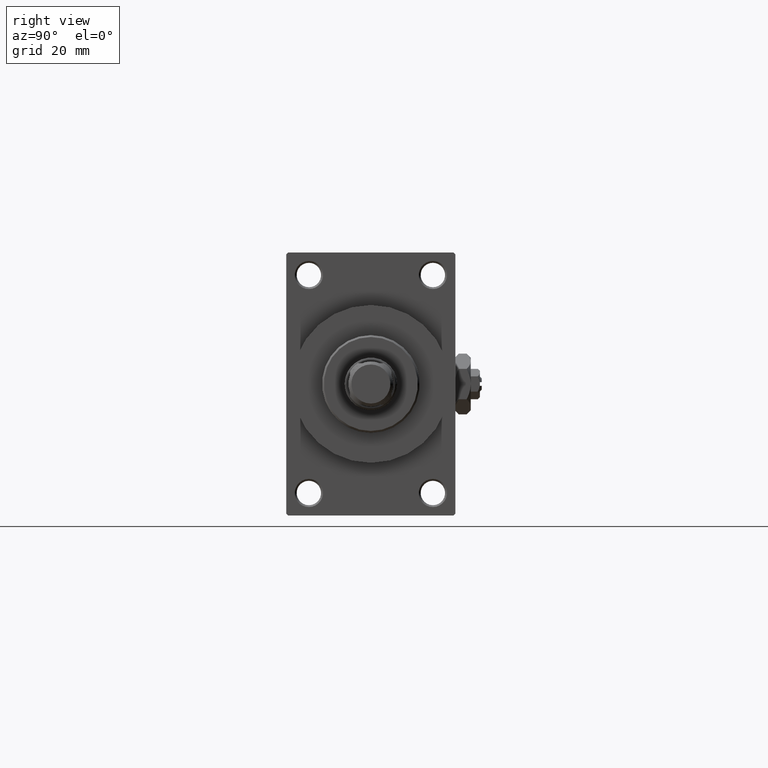
[diagram: clean part render]
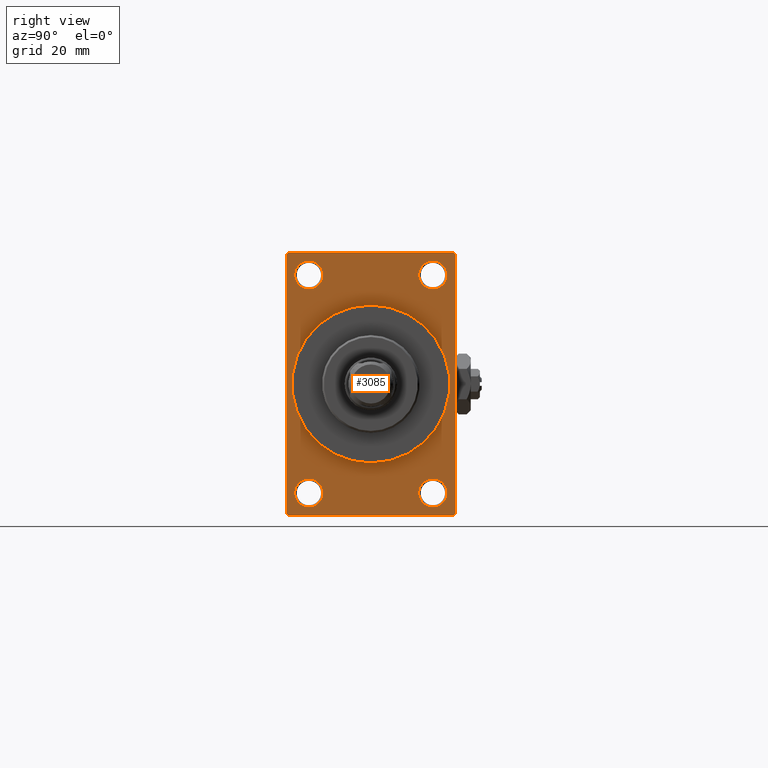
[diagram: same view with one face highlighted and labeled with its STEP entity id]
A machine part, right view. The second image highlights one B-rep face of the part: STEP entity #3085.
In plain terms, the highlighted planar face has unit normal (-1, 0, 0).
Its self-contained STEP definition (entity closure, byte-faithful):
#14 = CARTESIAN_POINT ( 'NONE',  ( 113.0000000000000142, -22.50000000000000355, 35.00000000000000000 ) ) ;
#55 = CARTESIAN_POINT ( 'NONE',  ( 113.0000000000000142, 21.99999999999999645, 35.00000000000000000 ) ) ;
#585 = VERTEX_POINT ( 'NONE', #46696 ) ;
#663 = CARTESIAN_POINT ( 'NONE',  ( 113.0000000000000142, 16.50000000000000000, 29.00000000000000355 ) ) ;
#1186 = DIRECTION ( 'NONE',  ( -1.000000000000000000, -0.000000000000000000, -0.000000000000000000 ) ) ;
#1224 = EDGE_LOOP ( 'NONE', ( #28416, #38669, #16229, #17737, #23259, #28214, #38810, #9208 ) ) ;
#1513 = CARTESIAN_POINT ( 'NONE',  ( 113.0000000000000142, 16.50000000000000000, 29.00000000000000355 ) ) ;
#1575 = CARTESIAN_POINT ( 'NONE',  ( 113.0000000000000142, 22.49999999999999645, -34.50000000000000000 ) ) ;
#2405 = CARTESIAN_POINT ( 'NONE',  ( 113.0000000000000142, -16.50000000000000000, 29.00000000000000711 ) ) ;
#2500 = VERTEX_POINT ( 'NONE', #23796 ) ;
#2506 = EDGE_CURVE ( 'NONE', #33020, #2500, #31056, .T. ) ;
#2868 = DIRECTION ( 'NONE',  ( 0.000000000000000000, -1.000000000000000000, 0.000000000000000000 ) ) ;
#3028 = EDGE_CURVE ( 'NONE', #45843, #30572, #8179, .T. ) ;
#3085 = ADVANCED_FACE ( 'NONE', ( #17470, #25939, #13701, #28956, #48537, #18202 ), #25445, .F. ) ;
#3635 = VERTEX_POINT ( 'NONE', #45576 ) ;
#3804 = LINE ( 'NONE', #55, #36139 ) ;
#4159 = AXIS2_PLACEMENT_3D ( 'NONE', #2405, #6176, #25691 ) ;
#4187 = ORIENTED_EDGE ( 'NONE', *, *, #35320, .T. ) ;
#4560 = AXIS2_PLACEMENT_3D ( 'NONE', #1513, #36329, #39601 ) ;
#4759 = DIRECTION ( 'NONE',  ( 0.000000000000000000, 0.000000000000000000, -1.000000000000000000 ) ) ;
#5661 = LINE ( 'NONE', #25180, #41202 ) ;
#6154 = CIRCLE ( 'NONE', #22171, 3.750000000000069278 ) ;
#6176 = DIRECTION ( 'NONE',  ( -1.000000000000000000, -0.000000000000000000, -0.000000000000000000 ) ) ;
#7410 = CARTESIAN_POINT ( 'NONE',  ( 113.0000000000000142, -16.50000000000000000, -28.99999999999999289 ) ) ;
#7517 = AXIS2_PLACEMENT_3D ( 'NONE', #9797, #20153, #16410 ) ;
#7819 = CARTESIAN_POINT ( 'NONE',  ( 113.0000000000000142, 22.49999999999999645, -35.00000000000000000 ) ) ;
#7926 = DIRECTION ( 'NONE',  ( -1.000000000000000000, -0.000000000000000000, -0.000000000000000000 ) ) ;
#8179 = CIRCLE ( 'NONE', #4159, 3.750000000000069278 ) ;
#8427 = VERTEX_POINT ( 'NONE', #29560 ) ;
#9155 = CARTESIAN_POINT ( 'NONE',  ( 113.0000000000000142, -16.50000000000000000, -28.99999999999999289 ) ) ;
#9208 = ORIENTED_EDGE ( 'NONE', *, *, #22140, .T. ) ;
#9797 = CARTESIAN_POINT ( 'NONE',  ( 113.0000000000000142, 0.000000000000000000, 0.000000000000000000 ) ) ;
#9805 = DIRECTION ( 'NONE',  ( 0.000000000000000000, 0.000000000000000000, 1.000000000000000000 ) ) ;
#10097 = VECTOR ( 'NONE', #2868, 1000.000000000000000 ) ;
#11580 = DIRECTION ( 'NONE',  ( 0.000000000000000000, -0.7071067811865474617, 0.7071067811865474617 ) ) ;
#11666 = VERTEX_POINT ( 'NONE', #43088 ) ;
#11772 = CARTESIAN_POINT ( 'NONE',  ( 113.0000000000000142, 0.000000000000000000, 21.00000000000000000 ) ) ;
#12428 = EDGE_LOOP ( 'NONE', ( #33738, #34989 ) ) ;
#12461 = EDGE_LOOP ( 'NONE', ( #13260, #38657 ) ) ;
#12716 = VECTOR ( 'NONE', #40253, 1000.000000000000114 ) ;
#12916 = CIRCLE ( 'NONE', #19305, 3.750000000000072831 ) ;
#13260 = ORIENTED_EDGE ( 'NONE', *, *, #47611, .T. ) ;
#13701 = FACE_BOUND ( 'NONE', #48430, .T. ) ;
#13779 = CARTESIAN_POINT ( 'NONE',  ( 113.0000000000000142, -21.99999999999998934, -35.00000000000000000 ) ) ;
#13951 = LINE ( 'NONE', #22204, #12716 ) ;
#14198 = DIRECTION ( 'NONE',  ( -0.000000000000000000, 0.000000000000000000, 1.000000000000000000 ) ) ;
#14979 = ORIENTED_EDGE ( 'NONE', *, *, #45543, .F. ) ;
#15441 = DIRECTION ( 'NONE',  ( -1.000000000000000000, -0.000000000000000000, -0.000000000000000000 ) ) ;
#16108 = AXIS2_PLACEMENT_3D ( 'NONE', #18526, #30271, #18769 ) ;
#16141 = ORIENTED_EDGE ( 'NONE', *, *, #47181, .T. ) ;
#16229 = ORIENTED_EDGE ( 'NONE', *, *, #46661, .F. ) ;
#16410 = DIRECTION ( 'NONE',  ( 0.000000000000000000, 0.000000000000000000, -1.000000000000000000 ) ) ;
#16642 = EDGE_CURVE ( 'NONE', #40873, #39369, #29657, .T. ) ;
#16988 = DIRECTION ( 'NONE',  ( 0.000000000000000000, 0.000000000000000000, 1.000000000000000000 ) ) ;
#16990 = AXIS2_PLACEMENT_3D ( 'NONE', #44255, #17946, #14198 ) ;
#17093 = CARTESIAN_POINT ( 'NONE',  ( 113.0000000000000142, 16.50000000000000000, -28.99999999999999289 ) ) ;
#17182 = CARTESIAN_POINT ( 'NONE',  ( 113.0000000000000142, 22.49999999999999645, 35.00000000000000000 ) ) ;
#17470 = FACE_BOUND ( 'NONE', #24752, .T. ) ;
#17722 = EDGE_LOOP ( 'NONE', ( #14979, #34612 ) ) ;
#17737 = ORIENTED_EDGE ( 'NONE', *, *, #32056, .T. ) ;
#17908 = CARTESIAN_POINT ( 'NONE',  ( 113.0000000000000142, 2.571758278209441661E-15, -21.00000000000000000 ) ) ;
#17946 = DIRECTION ( 'NONE',  ( -1.000000000000000000, 0.000000000000000000, -0.000000000000000000 ) ) ;
#17965 = CIRCLE ( 'NONE', #30744, 3.750000000000076383 ) ;
#18202 = FACE_OUTER_BOUND ( 'NONE', #1224, .T. ) ;
#18208 = LINE ( 'NONE', #36979, #20461 ) ;
#18252 = EDGE_CURVE ( 'NONE', #8427, #3635, #24528, .T. ) ;
#18526 = CARTESIAN_POINT ( 'NONE',  ( 113.0000000000000142, 16.50000000000000000, -28.99999999999999289 ) ) ;
#18769 = DIRECTION ( 'NONE',  ( 0.000000000000000000, 0.000000000000000000, 1.000000000000000000 ) ) ;
#19305 = AXIS2_PLACEMENT_3D ( 'NONE', #663, #7926, #23200 ) ;
#19387 = VERTEX_POINT ( 'NONE', #11772 ) ;
#20153 = DIRECTION ( 'NONE',  ( 1.000000000000000000, 0.000000000000000000, 0.000000000000000000 ) ) ;
#20215 = CARTESIAN_POINT ( 'NONE',  ( 113.0000000000000142, -21.99999999999998934, 35.00000000000000000 ) ) ;
#20370 = CARTESIAN_POINT ( 'NONE',  ( 113.0000000000000142, 0.000000000000000000, 0.000000000000000000 ) ) ;
#20419 = VERTEX_POINT ( 'NONE', #31677 ) ;
#20461 = VECTOR ( 'NONE', #47126, 1000.000000000000114 ) ;
#22140 = EDGE_CURVE ( 'NONE', #39369, #33020, #13951, .T. ) ;
#22171 = AXIS2_PLACEMENT_3D ( 'NONE', #40009, #1186, #16988 ) ;
#22204 = CARTESIAN_POINT ( 'NONE',  ( 113.0000000000000142, -22.50000000000000355, 34.50000000000000000 ) ) ;
#22354 = DIRECTION ( 'NONE',  ( 0.000000000000000000, -1.000000000000000000, 0.000000000000000000 ) ) ;
#23200 = DIRECTION ( 'NONE',  ( 0.000000000000000000, 0.000000000000000000, 1.000000000000000000 ) ) ;
#23259 = ORIENTED_EDGE ( 'NONE', *, *, #26433, .F. ) ;
#23796 = CARTESIAN_POINT ( 'NONE',  ( 113.0000000000000142, -22.50000000000000355, -34.49999999999997158 ) ) ;
#24053 = CIRCLE ( 'NONE', #16108, 3.750000000000076383 ) ;
#24528 = CIRCLE ( 'NONE', #4560, 3.750000000000072831 ) ;
#24567 = EDGE_CURVE ( 'NONE', #36709, #19387, #29096, .T. ) ;
#24752 = EDGE_LOOP ( 'NONE', ( #44051, #4187 ) ) ;
#24914 = DIRECTION ( 'NONE',  ( -1.000000000000000000, -0.000000000000000000, -0.000000000000000000 ) ) ;
#25180 = CARTESIAN_POINT ( 'NONE',  ( 113.0000000000000142, 22.49999999999999645, 35.00000000000000000 ) ) ;
#25445 = PLANE ( 'NONE',  #16990 ) ;
#25691 = DIRECTION ( 'NONE',  ( 0.000000000000000000, 0.000000000000000000, 1.000000000000000000 ) ) ;
#25702 = EDGE_CURVE ( 'NONE', #20419, #40763, #17965, .T. ) ;
#25939 = FACE_BOUND ( 'NONE', #12461, .T. ) ;
#26433 = EDGE_CURVE ( 'NONE', #34688, #48775, #5661, .T. ) ;
#26559 = CARTESIAN_POINT ( 'NONE',  ( 113.0000000000000142, 22.49999999999999645, 34.50000000000000000 ) ) ;
#28214 = ORIENTED_EDGE ( 'NONE', *, *, #49118, .T. ) ;
#28416 = ORIENTED_EDGE ( 'NONE', *, *, #2506, .T. ) ;
#28839 = AXIS2_PLACEMENT_3D ( 'NONE', #20370, #35159, #31397 ) ;
#28918 = DIRECTION ( 'NONE',  ( 0.000000000000000000, 0.000000000000000000, 1.000000000000000000 ) ) ;
#28956 = FACE_BOUND ( 'NONE', #12428, .T. ) ;
#29096 = CIRCLE ( 'NONE', #7517, 21.00000000000000000 ) ;
#29560 = CARTESIAN_POINT ( 'NONE',  ( 113.0000000000000142, 16.50000000000000000, 32.75000000000007816 ) ) ;
#29578 = VECTOR ( 'NONE', #40081, 999.9999999999998863 ) ;
#29657 = LINE ( 'NONE', #17182, #10097 ) ;
#30271 = DIRECTION ( 'NONE',  ( -1.000000000000000000, -0.000000000000000000, -0.000000000000000000 ) ) ;
#30572 = VERTEX_POINT ( 'NONE', #38529 ) ;
#30595 = LINE ( 'NONE', #7819, #31278 ) ;
#30744 = AXIS2_PLACEMENT_3D ( 'NONE', #17093, #33083, #9805 ) ;
#31056 = LINE ( 'NONE', #14, #40956 ) ;
#31278 = VECTOR ( 'NONE', #22354, 1000.000000000000000 ) ;
#31397 = DIRECTION ( 'NONE',  ( 0.000000000000000000, 0.000000000000000000, -1.000000000000000000 ) ) ;
#31677 = CARTESIAN_POINT ( 'NONE',  ( 113.0000000000000142, 16.50000000000000000, -25.24999999999992184 ) ) ;
#32056 = EDGE_CURVE ( 'NONE', #41143, #48775, #18208, .T. ) ;
#33020 = VERTEX_POINT ( 'NONE', #39091 ) ;
#33083 = DIRECTION ( 'NONE',  ( -1.000000000000000000, -0.000000000000000000, -0.000000000000000000 ) ) ;
#33738 = ORIENTED_EDGE ( 'NONE', *, *, #48356, .T. ) ;
#34612 = ORIENTED_EDGE ( 'NONE', *, *, #24567, .F. ) ;
#34688 = VERTEX_POINT ( 'NONE', #26559 ) ;
#34989 = ORIENTED_EDGE ( 'NONE', *, *, #18252, .T. ) ;
#35159 = DIRECTION ( 'NONE',  ( 1.000000000000000000, 0.000000000000000000, 0.000000000000000000 ) ) ;
#35320 = EDGE_CURVE ( 'NONE', #30572, #45843, #6154, .T. ) ;
#35599 = EDGE_CURVE ( 'NONE', #39831, #585, #42206, .T. ) ;
#36139 = VECTOR ( 'NONE', #11580, 1000.000000000000114 ) ;
#36329 = DIRECTION ( 'NONE',  ( -1.000000000000000000, -0.000000000000000000, -0.000000000000000000 ) ) ;
#36673 = CARTESIAN_POINT ( 'NONE',  ( 113.0000000000000142, 16.50000000000000000, -32.75000000000007105 ) ) ;
#36709 = VERTEX_POINT ( 'NONE', #17908 ) ;
#36979 = CARTESIAN_POINT ( 'NONE',  ( 113.0000000000000142, 22.49999999999999645, -34.50000000000000000 ) ) ;
#38529 = CARTESIAN_POINT ( 'NONE',  ( 113.0000000000000142, -16.50000000000000000, 32.75000000000007816 ) ) ;
#38657 = ORIENTED_EDGE ( 'NONE', *, *, #35599, .T. ) ;
#38669 = ORIENTED_EDGE ( 'NONE', *, *, #45110, .T. ) ;
#38781 = CARTESIAN_POINT ( 'NONE',  ( 113.0000000000000142, 21.99999999999999645, -35.00000000000000000 ) ) ;
#38810 = ORIENTED_EDGE ( 'NONE', *, *, #16642, .T. ) ;
#39091 = CARTESIAN_POINT ( 'NONE',  ( 113.0000000000000142, -22.50000000000000355, 34.50000000000000000 ) ) ;
#39106 = CARTESIAN_POINT ( 'NONE',  ( 113.0000000000000142, -16.50000000000000000, 25.24999999999993960 ) ) ;
#39369 = VERTEX_POINT ( 'NONE', #20215 ) ;
#39601 = DIRECTION ( 'NONE',  ( 0.000000000000000000, 0.000000000000000000, 1.000000000000000000 ) ) ;
#39831 = VERTEX_POINT ( 'NONE', #41912 ) ;
#40009 = CARTESIAN_POINT ( 'NONE',  ( 113.0000000000000142, -16.50000000000000000, 29.00000000000000711 ) ) ;
#40081 = DIRECTION ( 'NONE',  ( 0.000000000000000000, 0.7071067811865376918, -0.7071067811865574537 ) ) ;
#40253 = DIRECTION ( 'NONE',  ( -0.000000000000000000, -0.7071067811865474617, -0.7071067811865474617 ) ) ;
#40574 = LINE ( 'NONE', #13779, #29578 ) ;
#40763 = VERTEX_POINT ( 'NONE', #36673 ) ;
#40873 = VERTEX_POINT ( 'NONE', #47187 ) ;
#40956 = VECTOR ( 'NONE', #4759, 1000.000000000000000 ) ;
#41143 = VERTEX_POINT ( 'NONE', #38781 ) ;
#41202 = VECTOR ( 'NONE', #43752, 1000.000000000000000 ) ;
#41912 = CARTESIAN_POINT ( 'NONE',  ( 113.0000000000000142, -16.50000000000000000, -25.24999999999992184 ) ) ;
#41982 = DIRECTION ( 'NONE',  ( 0.000000000000000000, 0.000000000000000000, 1.000000000000000000 ) ) ;
#42206 = CIRCLE ( 'NONE', #48634, 3.750000000000076383 ) ;
#43088 = CARTESIAN_POINT ( 'NONE',  ( 113.0000000000000142, -21.99999999999997513, -35.00000000000000000 ) ) ;
#43676 = ORIENTED_EDGE ( 'NONE', *, *, #25702, .T. ) ;
#43752 = DIRECTION ( 'NONE',  ( 0.000000000000000000, 0.000000000000000000, -1.000000000000000000 ) ) ;
#44051 = ORIENTED_EDGE ( 'NONE', *, *, #3028, .T. ) ;
#44060 = CIRCLE ( 'NONE', #28839, 21.00000000000000000 ) ;
#44127 = AXIS2_PLACEMENT_3D ( 'NONE', #9155, #24914, #28918 ) ;
#44255 = CARTESIAN_POINT ( 'NONE',  ( 113.0000000000000142, 0.000000000000000000, 0.000000000000000000 ) ) ;
#45110 = EDGE_CURVE ( 'NONE', #2500, #11666, #40574, .T. ) ;
#45543 = EDGE_CURVE ( 'NONE', #19387, #36709, #44060, .T. ) ;
#45576 = CARTESIAN_POINT ( 'NONE',  ( 113.0000000000000142, 16.50000000000000000, 25.24999999999993250 ) ) ;
#45687 = CIRCLE ( 'NONE', #44127, 3.750000000000076383 ) ;
#45843 = VERTEX_POINT ( 'NONE', #39106 ) ;
#46661 = EDGE_CURVE ( 'NONE', #41143, #11666, #30595, .T. ) ;
#46696 = CARTESIAN_POINT ( 'NONE',  ( 113.0000000000000142, -16.50000000000000000, -32.75000000000007105 ) ) ;
#47126 = DIRECTION ( 'NONE',  ( -0.000000000000000000, 0.7071067811865474617, 0.7071067811865474617 ) ) ;
#47181 = EDGE_CURVE ( 'NONE', #40763, #20419, #24053, .T. ) ;
#47187 = CARTESIAN_POINT ( 'NONE',  ( 113.0000000000000142, 21.99999999999999645, 35.00000000000000000 ) ) ;
#47611 = EDGE_CURVE ( 'NONE', #585, #39831, #45687, .T. ) ;
#48356 = EDGE_CURVE ( 'NONE', #3635, #8427, #12916, .T. ) ;
#48430 = EDGE_LOOP ( 'NONE', ( #16141, #43676 ) ) ;
#48537 = FACE_BOUND ( 'NONE', #17722, .T. ) ;
#48634 = AXIS2_PLACEMENT_3D ( 'NONE', #7410, #15441, #41982 ) ;
#48775 = VERTEX_POINT ( 'NONE', #1575 ) ;
#49118 = EDGE_CURVE ( 'NONE', #34688, #40873, #3804, .T. ) ;